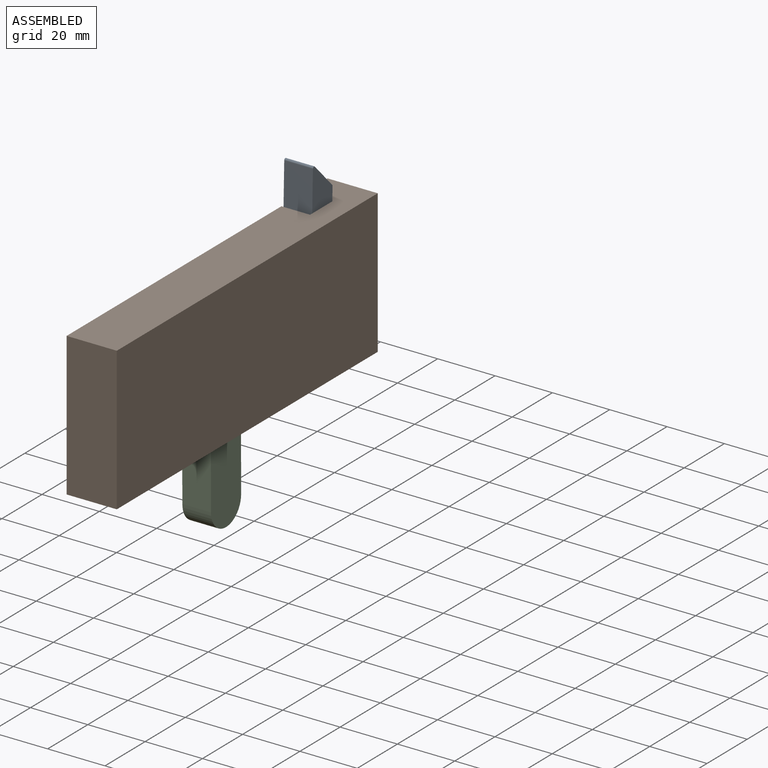
[diagram: assembled view]
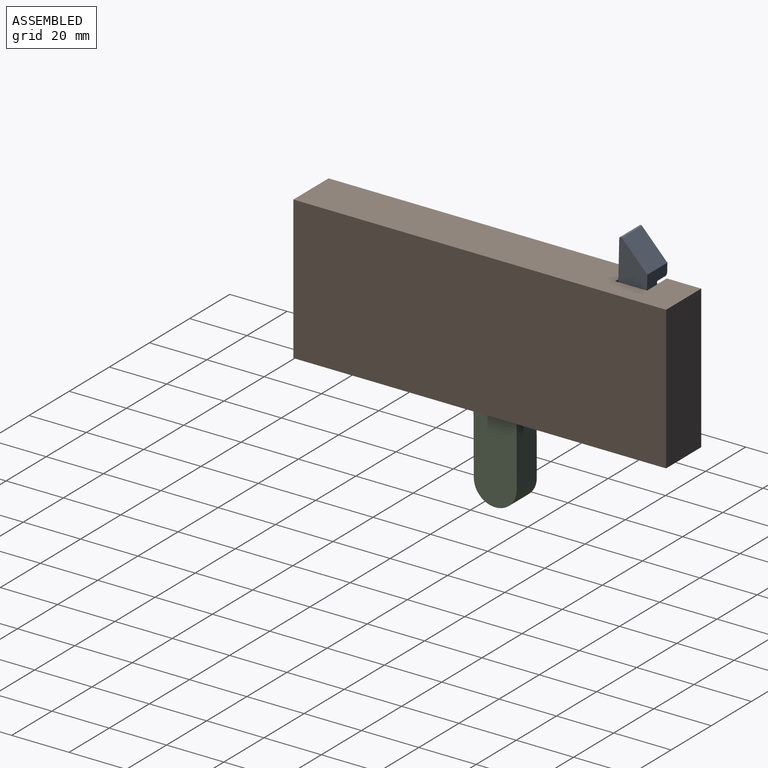
[diagram: assembled view, second angle]
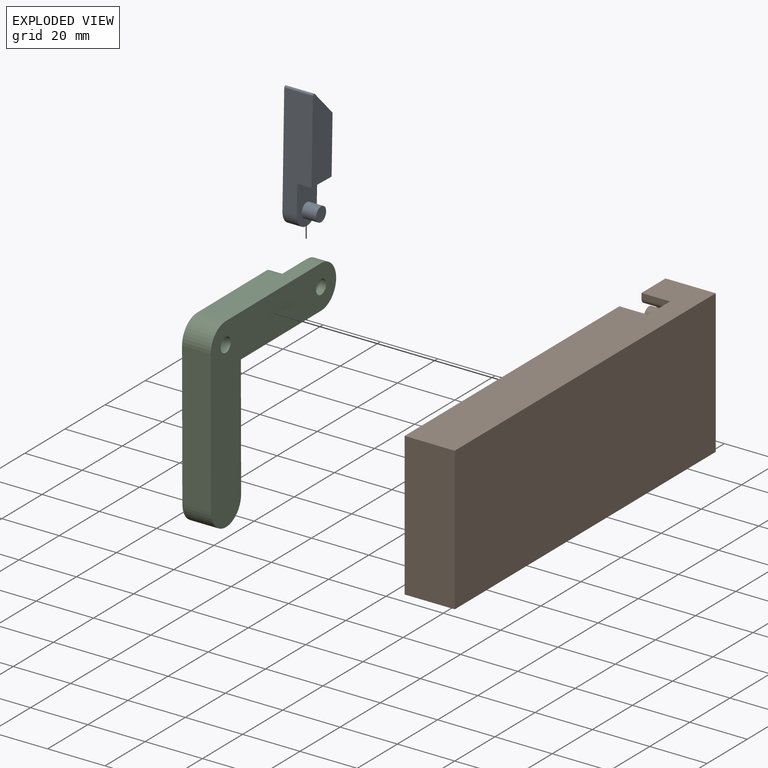
[diagram: exploded view]
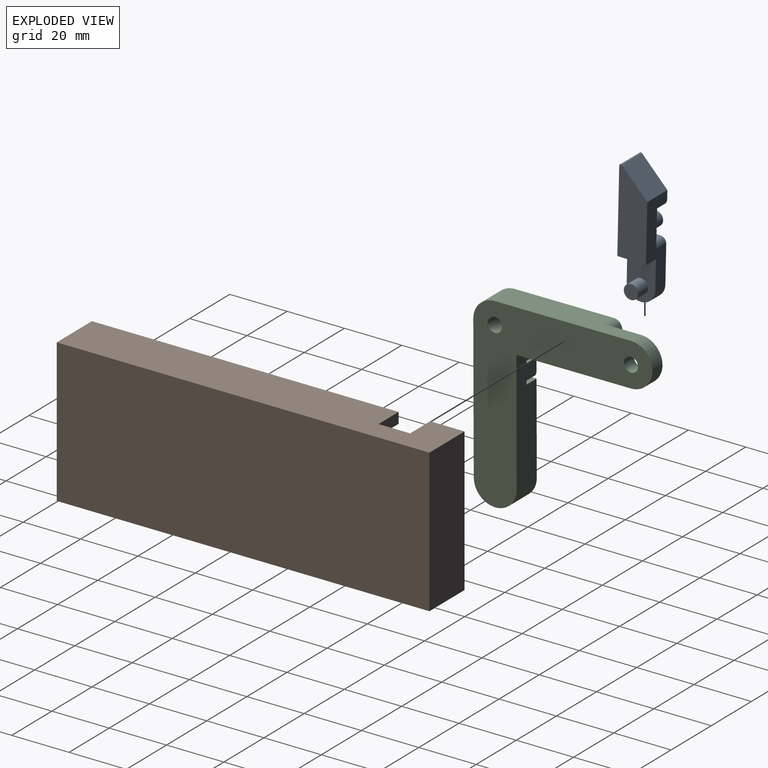
[diagram: exploded view, second angle]
ASSEMBLY  parts=3 mates=2
PART A: 19 faces, bbox 10x10x44.2 mm
  f0: plane 30x10mm, normal (0,-1,0), area 180mm2, adj f2,f3,f5,f6,f7,f9,f15,f17
  f1: plane 38.68x10mm, normal (0,1,0), area 336.8mm2, adj f2,f3,f4,f6,f7,f9
  f2: plane 29.23x10mm, normal (-1,0,0), area 249.6mm2, adj f0,f1,f4,f5,f7
  f3: cylinder r=5mm len=10mm, axis (-1,0,0), area 78.5mm2, adj f0,f1,f6,f9
  f4: cylinder r=0.55mm len=10mm, axis (-1,0,0), area 12.9mm2, adj f1,f2,f5,f6
  f5: plane 10x9.07mm, normal (0,-0.71,0.71), area 128.2mm2, adj f0,f2,f4,f6
  f6: plane 44.23x10mm, normal (1,0,0), area 312.2mm2, adj f0,f1,f3,f4,f5,f11,f12,f13
  f7: plane 10x5mm, normal (0,0,-1), area 50mm2, adj f0,f1,f2,f9
  f8: cylinder r=2.5mm len=5mm, axis (-1,0,0), area 78.5mm2, adj f9,f10
  f9: plane 15x10mm, normal (-1,0,0), area 119.6mm2, adj f0,f1,f3,f7,f8
  f10: plane 5x5mm, normal (-1,0,0), area 19.6mm2, adj f8
  f11: plane 5.5x5mm, normal (0,0,1), area 27.5mm2, adj f6,f12,f15,f17
  f12: plane 10x5mm, normal (0,-1,0), area 50mm2, adj f6,f11,f13,f15
  f13: plane 5.5x5mm, normal (0,0,-1), area 27.5mm2, adj f6,f12,f15,f18
  f14: cylinder r=2.5mm len=5mm, axis (-1,0,0), area 78.5mm2, adj f15,f16
  f15: plane 14x7.5mm, normal (1,0,0), area 57.1mm2, adj f0,f11,f12,f13,f14,f17,f18
  f16: plane 5x5mm, normal (1,0,0), area 19.6mm2, adj f14
  f17: cylinder r=2mm len=5mm, axis (-1,0,0), area 15.7mm2, adj f0,f6,f11,f15
  f18: cylinder r=2mm len=5mm, axis (1,0,0), area 15.7mm2, adj f0,f6,f13,f15
PART B: 33 faces, bbox 22.5x130x50 mm
  f0: plane 10x0.5mm, normal (0,1,0), area 5mm2, adj f2,f8,f24,f31
  f1: plane 10x1.75mm, normal (0,1,0), area 17.5mm2, adj f2,f4,f8,f32
  f2: plane 57.5x50mm, normal (1,0,0), area 483.3mm2, adj f0,f1,f4,f5,f6,f16,f17,f18
  f3: plane 50x17.5mm, normal (0,1,0), area 875mm2, adj f4,f6,f7,f15
  f4: plane 130x17.5mm, normal (0,0,1), area 2165mm2, adj f1,f2,f3,f5,f7,f8,f11,f15
  f5: plane 50x17.5mm, normal (0,-1,0), area 875mm2, adj f2,f4,f6,f7
  f6: plane 130x17.5mm, normal (0,0,-1), area 2030mm2, adj f2,f3,f5,f7,f8,f15,f16,f20
  f7: plane 130x50mm, normal (-1,0,0), area 6500mm2, adj f3,f4,f5,f6
  f8: plane 122.5x50mm, normal (1,0,0), area 5211.4mm2, adj f0,f1,f4,f6,f9,f11,f12,f13
  f9: cylinder r=2.5mm len=15mm, axis (-1,0,0), area 235.6mm2, adj f8,f10
  f10: plane 5x5mm, normal (1,0,0), area 19.6mm2, adj f9
  f11: plane 10x3.75mm, normal (0,-1,0), area 37.5mm2, adj f4,f8,f12,f15
  f12: plane 103.25x10mm, normal (0,0,-1), area 1032.5mm2, adj f8,f11,f13,f15
  f13: plane 42.5x10mm, normal (0,-1,0), area 425mm2, adj f8,f12,f14,f15
  f14: plane 44.25x10mm, normal (0,0,1), area 442.5mm2, adj f8,f13,f15,f21
  f15: plane 107x50mm, normal (1,0,0), area 746.4mm2, adj f3,f4,f6,f11,f12,f13,f14,f20
  f16: plane 10x3.75mm, normal (0,1,0), area 37.5mm2, adj f2,f6,f8,f17
  f17: plane 53.75x10mm, normal (0,0,1), area 537.5mm2, adj f2,f8,f16,f18
  f18: plane 21.25x10mm, normal (0,1,0), area 212.5mm2, adj f2,f8,f17,f19
  f19: plane 10x3.25mm, normal (0,0,-1), area 32.5mm2, adj f2,f8,f18,f25
  f20: cylinder r=2mm len=10mm, axis (-1,0,0), area 30.2mm2, adj f6,f8,f15,f21
  f21: cylinder r=2mm len=10mm, axis (1,0,0), area 30.2mm2, adj f8,f14,f15,f20
  f22: cylinder r=2.5mm len=15mm, axis (-1,0,0), area 235.6mm2, adj f8,f23
  f23: plane 5x5mm, normal (1,0,0), area 19.6mm2, adj f22
  f24: cylinder r=5mm len=10mm, axis (-1,0,0), area 78.5mm2, adj f0,f2,f8,f25
  f25: plane 10x5mm, normal (0,1,0), area 50mm2, adj f2,f8,f19,f24
  f26: plane 10x5.5mm, normal (0,0,1), area 55mm2, adj f2,f8,f28,f31
  f27: plane 10x5.5mm, normal (0,0,-1), area 55mm2, adj f2,f8,f28,f32
  f28: plane 10x8.75mm, normal (0,1,0), area 87.5mm2, adj f2,f8,f26,f27
  f29: cylinder r=2.5mm len=10mm, axis (-1,0,0), area 157.1mm2, adj f8,f30
  f30: plane 5x5mm, normal (1,0,0), area 19.6mm2, adj f29
  f31: cylinder r=2mm len=10mm, axis (-1,0,0), area 31.4mm2, adj f0,f2,f8,f26
  f32: cylinder r=2mm len=10mm, axis (-1,0,0), area 31.4mm2, adj f1,f2,f8,f27
PART C: 26 faces, bbox 10x62.5x65 mm
  f0: plane 42.5x10mm, normal (0,1,0), area 412.1mm2, adj f1,f2,f3,f7,f11,f16,f17,f19
  f1: plane 65x45mm, normal (-1,0,0), area 1286.9mm2, adj f0,f3,f4,f5,f6,f7,f10,f12
  f2: plane 9x3mm, normal (-1,0,0), area 26mm2, adj f0,f23,f24,f25
  f3: plane 40x10mm, normal (0,0,-1), area 335mm2, adj f0,f1,f8,f11,f13,f15
  f4: plane 47.5x10mm, normal (0,0,1), area 410mm2, adj f1,f5,f8,f11,f13,f14
  f5: cylinder r=7.5mm len=10mm, axis (-1,0,0), area 117.8mm2, adj f1,f4,f6,f11
  f6: plane 50x10mm, normal (0,-1,0), area 500mm2, adj f1,f5,f7,f11
  f7: cylinder r=7.5mm len=15mm, axis (-1,0,0), area 235.6mm2, adj f0,f1,f6,f11
  f8: cylinder r=7.5mm len=15mm, axis (-1,0,0), area 117.8mm2, adj f3,f4,f11,f13
  f9: cylinder r=2.5mm len=5mm, axis (-1,0,0), area 78.5mm2, adj f11,f13
  f10: cylinder r=2.5mm len=10mm, axis (-1,0,0), area 157.1mm2, adj f1,f11
  f11: plane 65x62.5mm, normal (1,0,0), area 1587.9mm2, adj f0,f3,f4,f5,f6,f7,f8,f9
  f12: plane 9x5mm, normal (0,1,0), area 45mm2, adj f1,f13,f14,f15
  f13: plane 20.5x15mm, normal (-1,0,0), area 222.6mm2, adj f3,f4,f8,f9,f12,f14,f15
  f14: cylinder r=3mm len=5mm, axis (-1,0,0), area 23.6mm2, adj f1,f4,f12,f13
  f15: cylinder r=3mm len=5mm, axis (1,0,0), area 23.6mm2, adj f1,f3,f12,f13
  f16: plane 7.5x5mm, normal (0,0,1), area 37.5mm2, adj f0,f1,f21,f22
  f17: plane 7.5x4mm, normal (0,0,-1), area 30mm2, adj f0,f18,f22,f23
  f18: cylinder r=2.5mm len=5mm, axis (-1,0,0), area 31.4mm2, adj f17,f19,f22,f24
  f19: plane 7.5x4mm, normal (0,0,1), area 30mm2, adj f0,f18,f22,f25
  f20: plane 7.5x5mm, normal (0,0,-1), area 37.5mm2, adj f0,f1,f21,f22
  f21: cylinder r=3.75mm len=7.5mm, axis (-1,0,0), area 58.9mm2, adj f1,f16,f20,f22
  f22: plane 11.25x7.5mm, normal (-1,0,0), area 31mm2, adj f0,f16,f17,f18,f19,f20,f21
  f23: cylinder r=1mm len=7.5mm, axis (0,1,0), area 11.8mm2, adj f0,f2,f17,f24
  f24: torus R=1.5mm, axis (1,0,0), area 10.5mm2, adj f2,f18,f23,f25
  f25: cylinder r=1mm len=7.5mm, axis (0,-1,0), area 11.8mm2, adj f0,f2,f19,f24
PLACE A rot(axis=(0,0.01,1),180deg) t=(-21.23,-4.87,-17.8)mm
PLACE B rot(axis=(0,0,-1),180deg) t=(-21.23,-52.37,-17.95)mm fixed
PLACE C rot(axis=(1,0,0),0.2deg) t=(-31.23,-52.37,-17.95)mm
MATE revolute A.f8 <-> C.f9  axis (1,0,0) through (-21.23,-4.87,-17.8)mm
MATE revolute C.f10 <-> B.f9  axis (1,0,0) through (-21.23,-52.37,-17.95)mm
